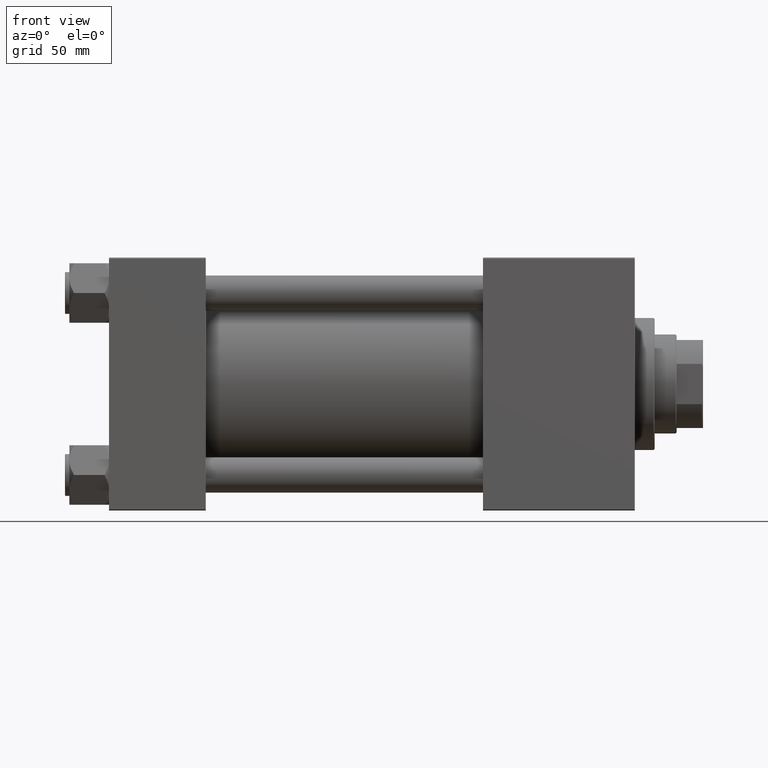
[diagram: clean part render]
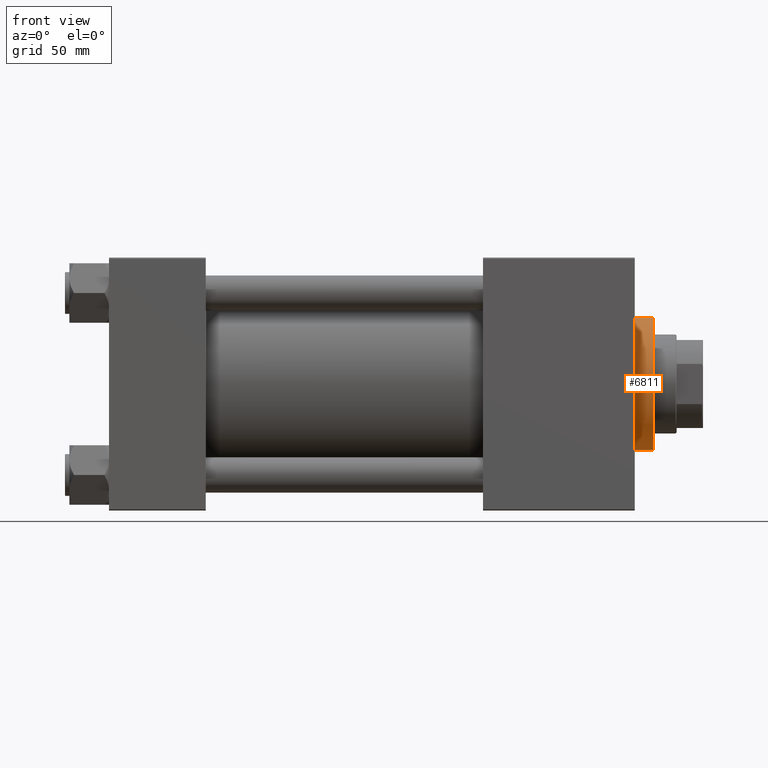
[diagram: same view with one face highlighted and labeled with its STEP entity id]
A machine part, front view. The second image highlights one B-rep face of the part: STEP entity #6811.
In plain terms, the highlighted cylindrical surface (partial cylindrical patch) has radius 30 mm, axis along (-1, -0, 0).
Its self-contained STEP definition (entity closure, byte-faithful):
#3008 = DIRECTION ( 'NONE',  ( -1.000000000000000000, 0.000000000000000000, 0.000000000000000000 ) ) ;
#4333 = CARTESIAN_POINT ( 'NONE',  ( 30.00000000000000000, 3.673940397442059178E-15, 28.69999999999999929 ) ) ;
#5482 = EDGE_CURVE ( 'NONE', #21327, #40637, #9475, .T. ) ;
#6069 = CARTESIAN_POINT ( 'NONE',  ( -30.00000000000000000, 0.000000000000000000, 37.69999999999999574 ) ) ;
#6347 = CYLINDRICAL_SURFACE ( 'NONE', #26934, 30.00000000000000000 ) ;
#6811 = ADVANCED_FACE ( 'NONE', ( #41933 ), #6347, .T. ) ;
#9475 = LINE ( 'NONE', #16888, #17007 ) ;
#9683 = EDGE_LOOP ( 'NONE', ( #23925, #46348, #13018, #33163 ) ) ;
#9908 = DIRECTION ( 'NONE',  ( -0.000000000000000000, -0.000000000000000000, -1.000000000000000000 ) ) ;
#10698 = VERTEX_POINT ( 'NONE', #46808 ) ;
#12262 = DIRECTION ( 'NONE',  ( 1.000000000000000000, 0.000000000000000000, 0.000000000000000000 ) ) ;
#13018 = ORIENTED_EDGE ( 'NONE', *, *, #38088, .T. ) ;
#13228 = VECTOR ( 'NONE', #9908, 1000.000000000000000 ) ;
#13842 = CARTESIAN_POINT ( 'NONE',  ( 0.000000000000000000, 0.000000000000000000, 37.20000000000000284 ) ) ;
#14344 = DIRECTION ( 'NONE',  ( 0.000000000000000000, 0.000000000000000000, -1.000000000000000000 ) ) ;
#16888 = CARTESIAN_POINT ( 'NONE',  ( 30.00000000000000000, 3.673940397442059178E-15, 37.69999999999999574 ) ) ;
#17007 = VECTOR ( 'NONE', #24577, 1000.000000000000000 ) ;
#21327 = VERTEX_POINT ( 'NONE', #47903 ) ;
#22446 = CARTESIAN_POINT ( 'NONE',  ( 0.000000000000000000, 0.000000000000000000, 37.69999999999999574 ) ) ;
#23925 = ORIENTED_EDGE ( 'NONE', *, *, #5482, .F. ) ;
#24577 = DIRECTION ( 'NONE',  ( -0.000000000000000000, -0.000000000000000000, -1.000000000000000000 ) ) ;
#26371 = DIRECTION ( 'NONE',  ( 1.000000000000000000, 0.000000000000000000, 0.000000000000000000 ) ) ;
#26934 = AXIS2_PLACEMENT_3D ( 'NONE', #22446, #37829, #3008 ) ;
#28864 = LINE ( 'NONE', #6069, #13228 ) ;
#32762 = VERTEX_POINT ( 'NONE', #47794 ) ;
#33163 = ORIENTED_EDGE ( 'NONE', *, *, #35007, .T. ) ;
#35007 = EDGE_CURVE ( 'NONE', #10698, #40637, #46421, .T. ) ;
#37829 = DIRECTION ( 'NONE',  ( -0.000000000000000000, -0.000000000000000000, -1.000000000000000000 ) ) ;
#37900 = CIRCLE ( 'NONE', #46105, 30.00000000000000000 ) ;
#38088 = EDGE_CURVE ( 'NONE', #32762, #10698, #28864, .T. ) ;
#39404 = CARTESIAN_POINT ( 'NONE',  ( 0.000000000000000000, 0.000000000000000000, 28.69999999999999929 ) ) ;
#40637 = VERTEX_POINT ( 'NONE', #4333 ) ;
#41933 = FACE_OUTER_BOUND ( 'NONE', #9683, .T. ) ;
#42767 = EDGE_CURVE ( 'NONE', #21327, #32762, #37900, .T. ) ;
#43961 = AXIS2_PLACEMENT_3D ( 'NONE', #39404, #48356, #12262 ) ;
#46105 = AXIS2_PLACEMENT_3D ( 'NONE', #13842, #14344, #26371 ) ;
#46348 = ORIENTED_EDGE ( 'NONE', *, *, #42767, .T. ) ;
#46421 = CIRCLE ( 'NONE', #43961, 30.00000000000000000 ) ;
#46808 = CARTESIAN_POINT ( 'NONE',  ( -30.00000000000000000, 0.000000000000000000, 28.69999999999999929 ) ) ;
#47794 = CARTESIAN_POINT ( 'NONE',  ( -30.00000000000000000, 0.000000000000000000, 37.20000000000000284 ) ) ;
#47903 = CARTESIAN_POINT ( 'NONE',  ( 30.00000000000000000, 3.673940397442059178E-15, 37.20000000000000284 ) ) ;
#48356 = DIRECTION ( 'NONE',  ( 0.000000000000000000, 0.000000000000000000, 1.000000000000000000 ) ) ;